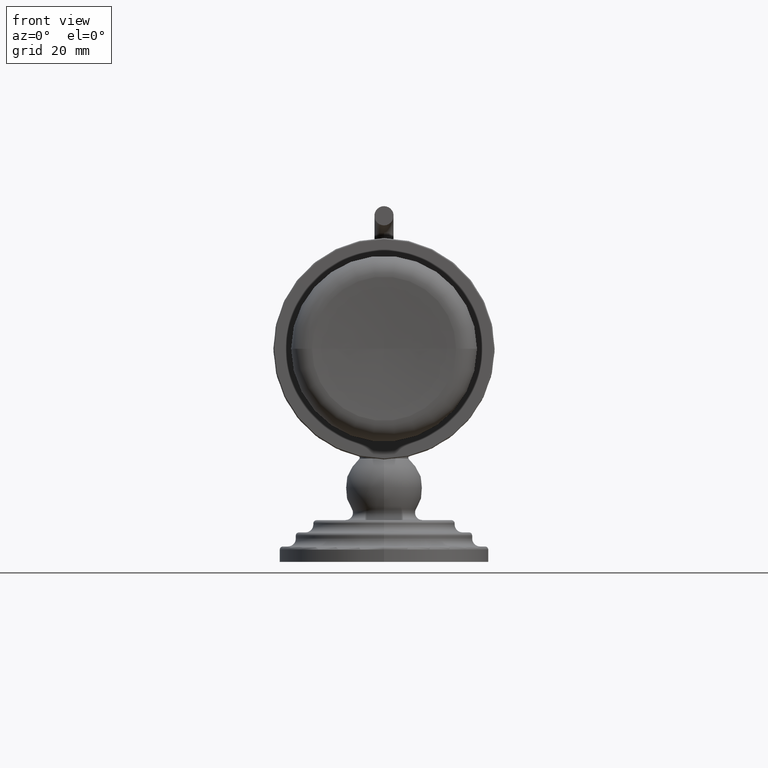
[diagram: clean part render]
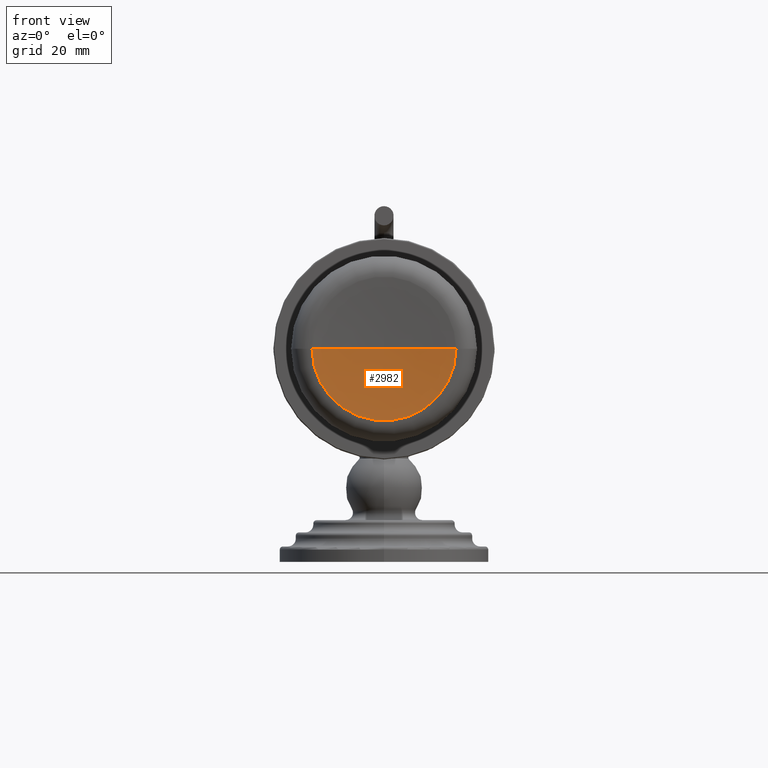
[diagram: same view with one face highlighted and labeled with its STEP entity id]
A machine part, front view. The second image highlights one B-rep face of the part: STEP entity #2982.
In plain terms, the highlighted spherical surface has radius 254 mm.
Its self-contained STEP definition (entity closure, byte-faithful):
#1456=CARTESIAN_POINT('',(0.E0,-3.795839994320E0,2.617E0));
#1457=DIRECTION('',(0.E0,1.E0,0.E0));
#1458=DIRECTION('',(1.E0,0.E0,0.E0));
#1459=AXIS2_PLACEMENT_3D('',#1456,#1457,#1458);
#1472=CARTESIAN_POINT('',(0.E0,-1.375663526004E1,2.617E0));
#1473=DIRECTION('',(0.E0,0.E0,-1.E0));
#1474=DIRECTION('',(0.E0,1.E0,0.E0));
#1475=AXIS2_PLACEMENT_3D('',#1472,#1473,#1474);
#1480=CARTESIAN_POINT('',(0.E0,-1.375663526004E1,2.617E0));
#1481=DIRECTION('',(0.E0,0.E0,1.E0));
#1482=DIRECTION('',(0.E0,1.E0,0.E0));
#1483=AXIS2_PLACEMENT_3D('',#1480,#1481,#1482);
#1586=CARTESIAN_POINT('',(8.846228995701E-1,-3.795839994320E0,2.617E0));
#1587=CARTESIAN_POINT('',(-8.846228995701E-1,-3.795839994320E0,2.617E0));
#1588=VERTEX_POINT('',#1586);
#1589=VERTEX_POINT('',#1587);
#1590=CARTESIAN_POINT('',(0.E0,-3.756635260038E0,2.617E0));
#1591=VERTEX_POINT('',#1590);
#2970=CARTESIAN_POINT('',(0.E0,-1.375663526004E1,2.617E0));
#2971=DIRECTION('',(0.E0,1.E0,0.E0));
#2972=DIRECTION('',(1.E0,0.E0,0.E0));
#2973=AXIS2_PLACEMENT_3D('',#2970,#2971,#2972);
#2974=SPHERICAL_SURFACE('',#2973,1.E1);
#2975=ORIENTED_EDGE('',*,*,#2957,.T.);
#2977=ORIENTED_EDGE('',*,*,#2976,.F.);
#2979=ORIENTED_EDGE('',*,*,#2978,.T.);
#2980=EDGE_LOOP('',(#2975,#2977,#2979));
#2981=FACE_OUTER_BOUND('',#2980,.F.);
#1460=CIRCLE('',#1459,8.846228995701E-1);
#1476=CIRCLE('',#1475,1.E1);
#1484=CIRCLE('',#1483,1.E1);
#2957=EDGE_CURVE('',#1588,#1589,#1460,.T.);
#2976=EDGE_CURVE('',#1591,#1589,#1484,.T.);
#2978=EDGE_CURVE('',#1591,#1588,#1476,.T.);
#2982=ADVANCED_FACE('',(#2981),#2974,.F.);